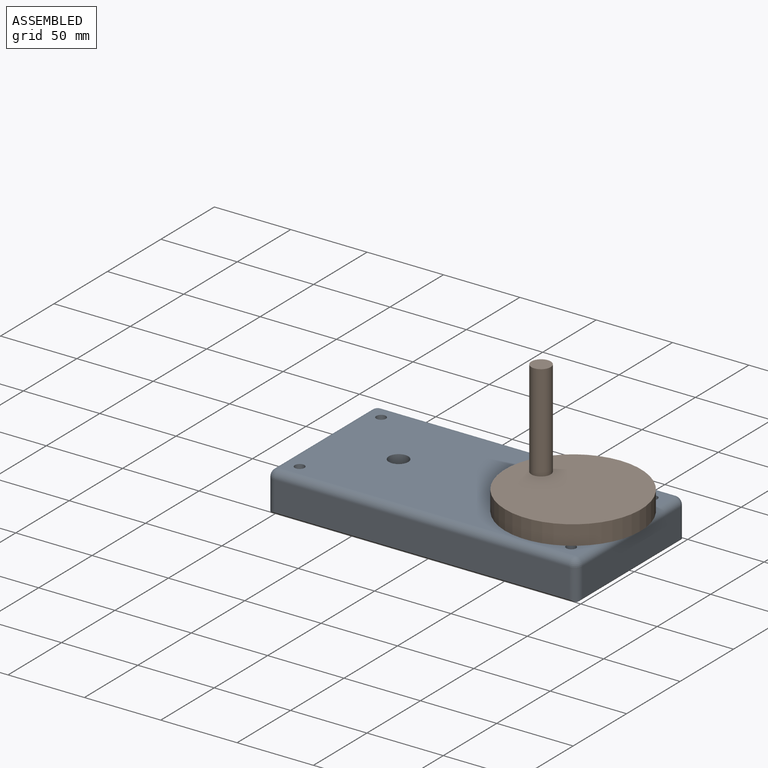
[diagram: assembled view]
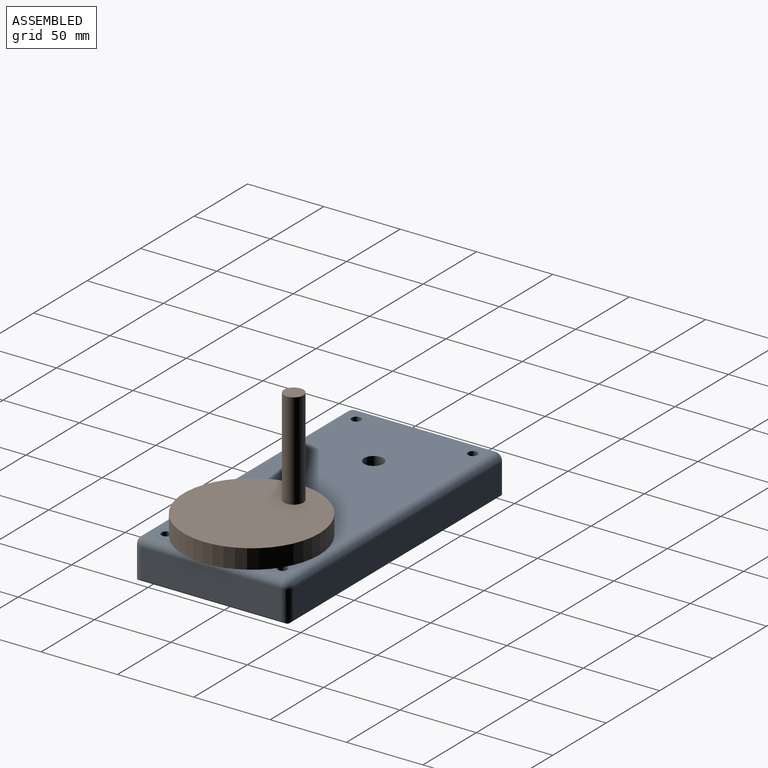
[diagram: assembled view, second angle]
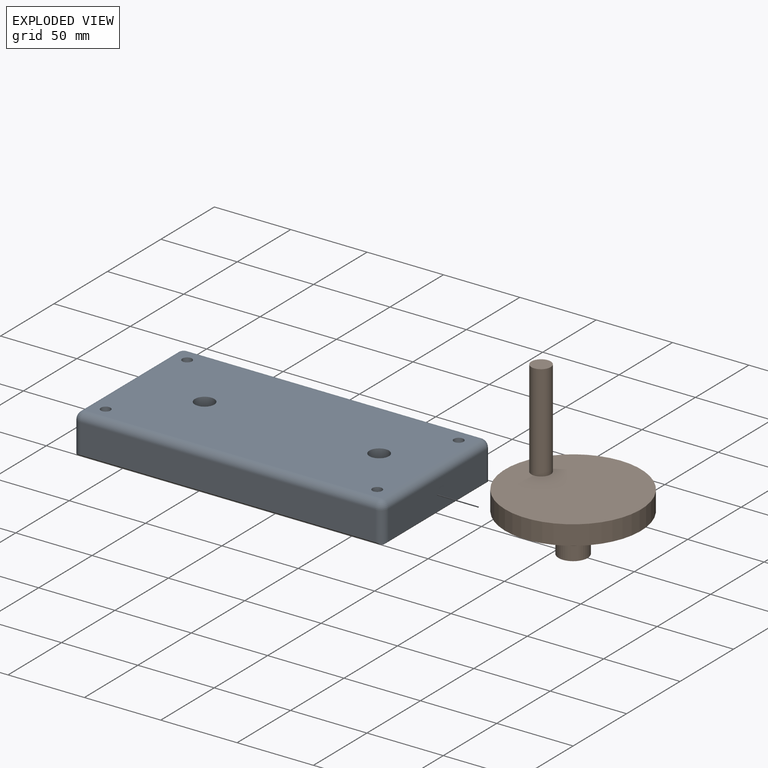
[diagram: exploded view]
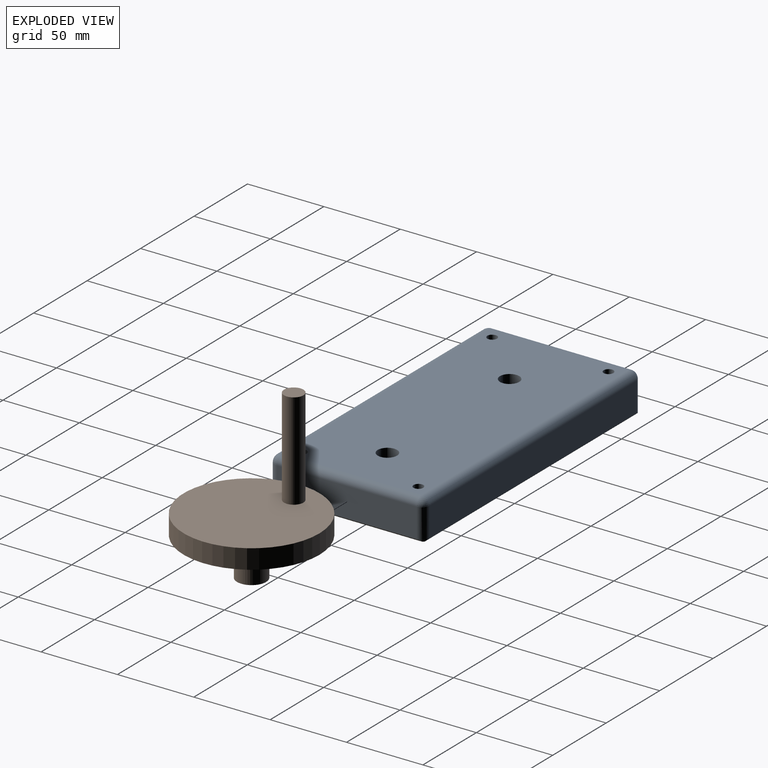
[diagram: exploded view, second angle]
ASSEMBLY  parts=2 mates=3
PART A: 34 faces, bbox 203.2x101.6x25.4 mm
  f0: plane 193.04x19.3mm, normal (0,1,0), area 3726.4mm2, adj f20,f22,f25,f33
  f1: plane 91.44x19.3mm, normal (-1,0,0), area 1765.2mm2, adj f18,f22,f23,f29
  f2: plane 193.04x19.3mm, normal (0,-1,0), area 3726.4mm2, adj f19,f23,f24,f26
  f3: cylinder r=3.17mm len=24.38mm, axis (0,0,-1), area 486.4mm2, adj f10,f17
  f4: cylinder r=3.17mm len=24.38mm, axis (0,0,-1), area 486.4mm2, adj f10,f16
  f5: cylinder r=3.17mm len=24.38mm, axis (0,0,-1), area 486.4mm2, adj f10,f15
  f6: cylinder r=3.17mm len=24.38mm, axis (0,0,-1), area 486.4mm2, adj f10,f14
  f7: cylinder r=6.35mm len=24.38mm, axis (0,0,-1), area 972.9mm2, adj f10,f13
  f8: cylinder r=6.35mm len=24.38mm, axis (0,0,-1), area 972.9mm2, adj f10,f12
  f9: plane 91.44x19.3mm, normal (1,0,0), area 1765.2mm2, adj f21,f24,f25,f30
  f10: plane 193.04x91.44mm, normal (0,0,1), area 17271.5mm2, adj f3,f4,f5,f6,f7,f8,f26,f29
  f11: plane 201.17x99.57mm, normal (0,0,-1), area 19466.4mm2, adj f12,f13,f14,f15,f16,f17,f18,f19
  f12: cone r=7.37mm half-angle=45deg, axis (0,0,-1), area 61.9mm2, adj f8,f11
  f13: cone r=7.37mm half-angle=45deg, axis (0,0,-1), area 61.9mm2, adj f7,f11
  f14: cone r=4.19mm half-angle=45deg, axis (0,0,-1), area 33.2mm2, adj f6,f11
  f15: cone r=4.19mm half-angle=45deg, axis (0,0,-1), area 33.2mm2, adj f5,f11
  f16: cone r=4.19mm half-angle=45deg, axis (0,0,-1), area 33.2mm2, adj f4,f11
  f17: cone r=4.19mm half-angle=45deg, axis (0,0,-1), area 33.2mm2, adj f3,f11
  f18: plane 97.54x1.02mm, normal (-0.71,0,-0.71), area 137.4mm2, adj f1,f11,f22,f23
  f19: plane 199.14x1.02mm, normal (0,-0.71,-0.71), area 283.3mm2, adj f2,f11,f23,f24
  f20: plane 199.14x1.02mm, normal (0,0.71,-0.71), area 283.3mm2, adj f0,f11,f22,f25
  f21: plane 97.54x1.02mm, normal (0.71,0,-0.71), area 137.4mm2, adj f9,f11,f24,f25
  f22: cylinder r=5.08mm len=20.32mm, axis (0,0,-1), area 157.7mm2, adj f0,f1,f11,f18,f20,f31
  f23: cylinder r=5.08mm len=20.32mm, axis (0,0,1), area 157.7mm2, adj f1,f2,f11,f18,f19,f27
  f24: cylinder r=5.08mm len=20.32mm, axis (0,0,-1), area 157.7mm2, adj f2,f9,f11,f19,f21,f28
  f25: cylinder r=5.08mm len=20.32mm, axis (0,0,1), area 157.7mm2, adj f0,f9,f11,f20,f21,f32
  f26: cylinder r=5.08mm len=193.04mm, axis (-1,0,0), area 1540.4mm2, adj f2,f10,f27,f28
  f27: sphere r=5.08mm, area 40.5mm2, adj f23,f26,f29
  f28: sphere r=5.08mm, area 40.5mm2, adj f24,f26,f30
  f29: cylinder r=5.08mm len=91.44mm, axis (0,1,0), area 729.7mm2, adj f1,f10,f27,f31
  f30: cylinder r=5.08mm len=91.44mm, axis (0,-1,0), area 729.7mm2, adj f9,f10,f28,f32
  f31: sphere r=5.08mm, area 40.5mm2, adj f22,f29,f33
  f32: sphere r=5.08mm, area 40.5mm2, adj f25,f30,f33
  f33: cylinder r=5.08mm len=193.04mm, axis (1,0,0), area 1540.4mm2, adj f0,f10,f31,f32
PART B: 7 faces, bbox 88.9x88.9x101.6 mm
  f0: cylinder r=44.45mm len=88.9mm, axis (0,0,-1), area 3547mm2, adj f1,f2
  f1: plane 88.9x88.9mm, normal (0,0,1), area 6080.5mm2, adj f0,f3
  f2: plane 88.9x88.9mm, normal (0,0,-1), area 5922.1mm2, adj f0,f5
  f3: cylinder r=6.35mm len=63.5mm, axis (0,0,-1), area 2533.5mm2, adj f1,f4
  f4: plane 12.7x12.7mm, normal (0,0,1), area 126.7mm2, adj f3
  f5: cylinder r=9.53mm len=25.4mm, axis (0,0,1), area 1520.1mm2, adj f2,f6
  f6: plane 19.05x19.05mm, normal (0,0,-1), area 285mm2, adj f5
PLACE A t=(-148.23,-136.82,40.81)mm fixed
PLACE B rot(axis=(0,0,1),98.8deg) t=(-85.23,-106.85,66.21)mm
MATE cylindrical A.f8 <-> A.f8  axis (0,0,-1) through (-199.53,-106.85,40.81)mm
MATE revolute B.f0 <-> A.f7  axis (0,0,-1) through (-85.23,-106.85,40.81)mm
MATE planar B.f0 <-> A.f10  axis (0,0,-1) through (-85.23,-106.85,66.21)mm
